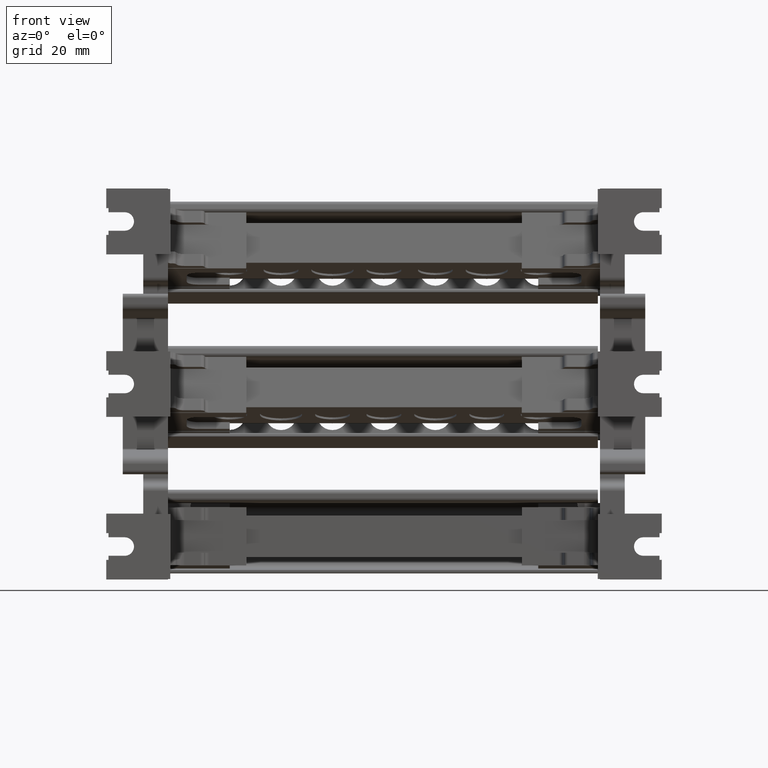
[diagram: clean part render]
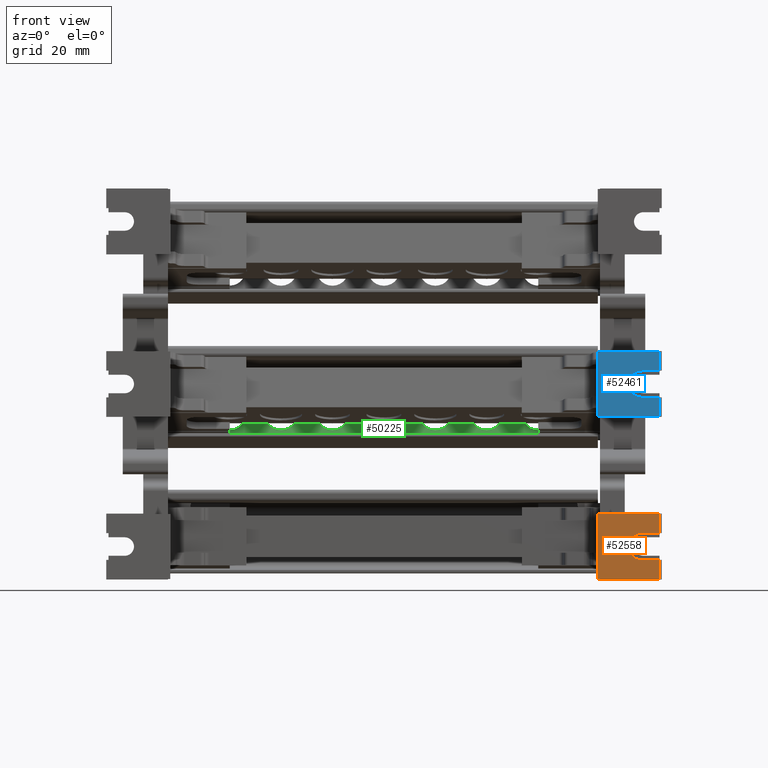
[diagram: same view with three faces highlighted in distinct colors, each labeled with its STEP entity id]
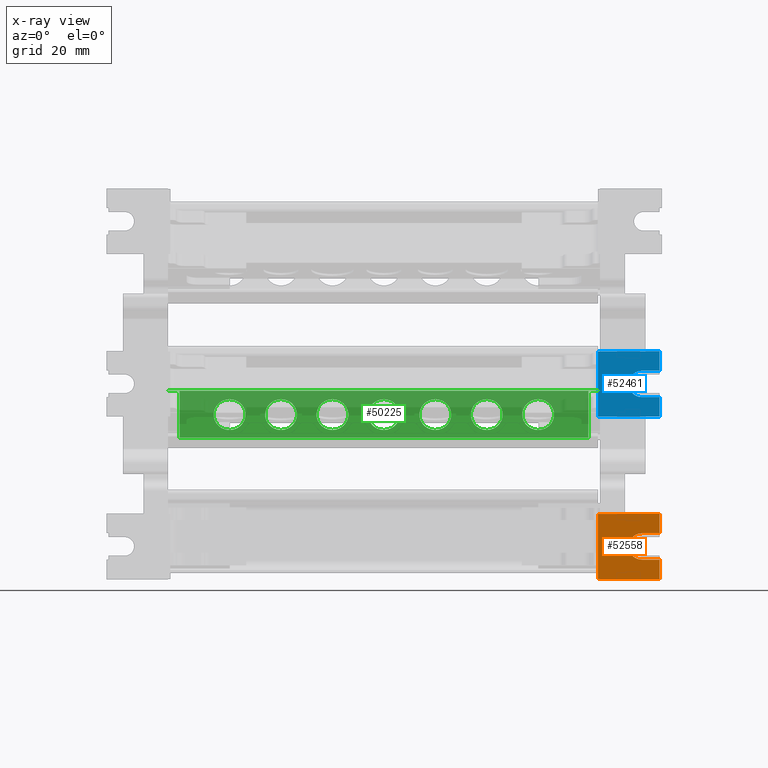
[diagram: x-ray of the same camera — body ghosted, the three highlighted faces saturated]
A machine part, front view with three faces highlighted in distinct colors.
The next image is the same camera in x-ray (body ghosted, the three faces saturated) — at least one of them is partly hidden behind the body in this view.
Their STEP definitions:

[orange] entity #52558 — the highlighted planar face has unit normal (0, 1, 0).
#4030 = VECTOR ( 'NONE', #16998, 1000.000000000000000 ) ;
#4119 = VECTOR ( 'NONE', #17245, 1000.000000000000000 ) ;
#4133 = VECTOR ( 'NONE', #17243, 1000.000000000000000 ) ;
#4245 = VECTOR ( 'NONE', #17391, 1000.000000000000000 ) ;
#4294 = VECTOR ( 'NONE', #17324, 1000.000000000000000 ) ;
#15942 = LINE ( 'NONE', #15975, #82627 ) ;
#15975 = CARTESIAN_POINT ( 'NONE',  ( 43.64805696747413300, 224.4797002765540100, -39.52685117816790200 ) ) ;
#16084 = DIRECTION ( 'NONE',  ( 1.000000000000000000, 0.0000000000000000000, 0.0000000000000000000 ) ) ;
#16132 = CARTESIAN_POINT ( 'NONE',  ( 54.34805696747413600, 224.4797002765540100, -36.32685117816790700 ) ) ;
#16137 = DIRECTION ( 'NONE',  ( 0.0000000000000000000, -1.000000000000000000, 0.0000000000000000000 ) ) ;
#16139 = DIRECTION ( 'NONE',  ( 0.0000000000000000000, 0.0000000000000000000, -1.000000000000000000 ) ) ;
#16670 = LINE ( 'NONE', #16724, #81398 ) ;
#16724 = CARTESIAN_POINT ( 'NONE',  ( 43.64805696747413300, 224.4797002765540100, -33.12685117816789700 ) ) ;
#16737 = DIRECTION ( 'NONE',  ( -1.000000000000000000, -0.0000000000000000000, -0.0000000000000000000 ) ) ;
#16943 = CARTESIAN_POINT ( 'NONE',  ( 58.64805696747413300, 224.4797002765540100, -28.42685117816790100 ) ) ;
#16996 = LINE ( 'NONE', #16943, #4030 ) ;
#16998 = DIRECTION ( 'NONE',  ( -0.0000000000000000000, -0.0000000000000000000, -1.000000000000000000 ) ) ;
#17212 = LINE ( 'NONE', #17266, #4133 ) ;
#17243 = DIRECTION ( 'NONE',  ( 0.0000000000000000000, 0.0000000000000000000, -1.000000000000000000 ) ) ;
#17245 = DIRECTION ( 'NONE',  ( -1.000000000000000000, 0.0000000000000000000, 0.0000000000000000000 ) ) ;
#17247 = CARTESIAN_POINT ( 'NONE',  ( 43.64805696747413300, 224.4797002765540100, -28.42685117816790100 ) ) ;
#17257 = LINE ( 'NONE', #17247, #4119 ) ;
#17266 = CARTESIAN_POINT ( 'NONE',  ( 43.64805696747413300, 224.4797002765540100, -28.42685117816790100 ) ) ;
#17324 = DIRECTION ( 'NONE',  ( -1.000000000000000000, 0.0000000000000000000, 0.0000000000000000000 ) ) ;
#17343 = LINE ( 'NONE', #17363, #4294 ) ;
#17363 = CARTESIAN_POINT ( 'NONE',  ( 43.64805696747413300, 224.4797002765540100, -44.22685117816789800 ) ) ;
#17367 = LINE ( 'NONE', #17405, #4245 ) ;
#17391 = DIRECTION ( 'NONE',  ( -0.0000000000000000000, -0.0000000000000000000, -1.000000000000000000 ) ) ;
#17405 = CARTESIAN_POINT ( 'NONE',  ( 58.64805696747413300, 224.4797002765540100, -28.42685117816790100 ) ) ;
#22850 = DIRECTION ( 'NONE',  ( 0.0000000000000000000, 0.0000000000000000000, 1.000000000000000000 ) ) ;
#22864 = PLANE ( 'NONE',  #25761 ) ;
#22875 = CARTESIAN_POINT ( 'NONE',  ( 43.64805696747413300, 224.4797002765540100, -28.42685117816790100 ) ) ;
#22893 = DIRECTION ( 'NONE',  ( 0.0000000000000000000, 1.000000000000000000, 0.0000000000000000000 ) ) ;
#22900 = FACE_OUTER_BOUND ( 'NONE', #37283, .T. ) ;
#24769 = ORIENTED_EDGE ( 'NONE', *, *, #55118, .F. ) ;
#24770 = ORIENTED_EDGE ( 'NONE', *, *, #55676, .F. ) ;
#24771 = ORIENTED_EDGE ( 'NONE', *, *, #55585, .T. ) ;
#24778 = ORIENTED_EDGE ( 'NONE', *, *, #55116, .F. ) ;
#24781 = ORIENTED_EDGE ( 'NONE', *, *, #55583, .T. ) ;
#24782 = ORIENTED_EDGE ( 'NONE', *, *, #55450, .F. ) ;
#24793 = ORIENTED_EDGE ( 'NONE', *, *, #55361, .F. ) ;
#24801 = ORIENTED_EDGE ( 'NONE', *, *, #55688, .F. ) ;
#25761 = AXIS2_PLACEMENT_3D ( 'NONE', #22875, #22893, #22850 ) ;
#32282 = VERTEX_POINT ( 'NONE', #62806 ) ;
#32298 = VERTEX_POINT ( 'NONE', #62730 ) ;
#32307 = VERTEX_POINT ( 'NONE', #62936 ) ;
#32336 = VERTEX_POINT ( 'NONE', #62928 ) ;
#32343 = VERTEX_POINT ( 'NONE', #62862 ) ;
#32356 = VERTEX_POINT ( 'NONE', #62884 ) ;
#32368 = VERTEX_POINT ( 'NONE', #62999 ) ;
#32383 = VERTEX_POINT ( 'NONE', #62995 ) ;
#37283 = EDGE_LOOP ( 'NONE', ( #24769, #24778, #24793, #24801, #24781, #24771, #24770, #24782 ) ) ;
#52558 = ADVANCED_FACE ( 'NONE', ( #22900 ), #22864, .F. ) ;
#55116 = EDGE_CURVE ( 'NONE', #32336, #32298, #82572, .T. ) ;
#55118 = EDGE_CURVE ( 'NONE', #32298, #32282, #15942, .T. ) ;
#55361 = EDGE_CURVE ( 'NONE', #32307, #32336, #16670, .T. ) ;
#55450 = EDGE_CURVE ( 'NONE', #32282, #32383, #16996, .T. ) ;
#55583 = EDGE_CURVE ( 'NONE', #32343, #32356, #17257, .T. ) ;
#55585 = EDGE_CURVE ( 'NONE', #32356, #32368, #17212, .T. ) ;
#55676 = EDGE_CURVE ( 'NONE', #32383, #32368, #17343, .T. ) ;
#55688 = EDGE_CURVE ( 'NONE', #32343, #32307, #17367, .T. ) ;
#62730 = CARTESIAN_POINT ( 'NONE',  ( 54.34805696747413600, 224.4797002765540100, -39.52685117816790200 ) ) ;
#62806 = CARTESIAN_POINT ( 'NONE',  ( 58.64805696747413300, 224.4797002765540100, -39.52685117816790200 ) ) ;
#62862 = CARTESIAN_POINT ( 'NONE',  ( 58.64805696747413300, 224.4797002765540100, -28.42685117816790100 ) ) ;
#62884 = CARTESIAN_POINT ( 'NONE',  ( 43.64805696747413300, 224.4797002765540100, -28.42685117816790100 ) ) ;
#62928 = CARTESIAN_POINT ( 'NONE',  ( 54.34805696747413600, 224.4797002765540100, -33.12685117816789700 ) ) ;
#62936 = CARTESIAN_POINT ( 'NONE',  ( 58.64805696747413300, 224.4797002765540100, -33.12685117816789700 ) ) ;
#62995 = CARTESIAN_POINT ( 'NONE',  ( 58.64805696747413300, 224.4797002765540100, -44.22685117816789800 ) ) ;
#62999 = CARTESIAN_POINT ( 'NONE',  ( 43.64805696747413300, 224.4797002765540100, -44.22685117816789800 ) ) ;
#81398 = VECTOR ( 'NONE', #16737, 1000.000000000000000 ) ;
#82572 = CIRCLE ( 'NONE', #82622, 3.200000000000001500 ) ;
#82622 = AXIS2_PLACEMENT_3D ( 'NONE', #16132, #16137, #16139 ) ;
#82627 = VECTOR ( 'NONE', #16084, 1000.000000000000000 ) ;

[blue] entity #52461 — the highlighted planar face has unit normal (0, 1, 0).
#15992 = DIRECTION ( 'NONE',  ( -0.0000000000000000000, -0.0000000000000000000, -1.000000000000000000 ) ) ;
#16026 = LINE ( 'NONE', #16028, #82576 ) ;
#16028 = CARTESIAN_POINT ( 'NONE',  ( 58.64805696747379200, 225.1545390998704200, 11.07073922711817500 ) ) ;
#17666 = LINE ( 'NONE', #17668, #82600 ) ;
#17668 = CARTESIAN_POINT ( 'NONE',  ( 58.64805696747379200, 225.1545390998704200, 11.07073922711817500 ) ) ;
#17703 = DIRECTION ( 'NONE',  ( -0.0000000000000000000, -0.0000000000000000000, -1.000000000000000000 ) ) ;
#18749 = CARTESIAN_POINT ( 'NONE',  ( 54.34805696747379500, 225.1545390998704200, 3.170739227118170200 ) ) ;
#18751 = DIRECTION ( 'NONE',  ( 0.0000000000000000000, 0.0000000000000000000, -1.000000000000000000 ) ) ;
#18792 = DIRECTION ( 'NONE',  ( 0.0000000000000000000, -1.000000000000000000, 0.0000000000000000000 ) ) ;
#18984 = LINE ( 'NONE', #19032, #82413 ) ;
#19032 = CARTESIAN_POINT ( 'NONE',  ( 43.64805696747379200, 225.1545390998704200, -0.02926077288182421500 ) ) ;
#19034 = DIRECTION ( 'NONE',  ( 1.000000000000000000, 0.0000000000000000000, 0.0000000000000000000 ) ) ;
#19127 = LINE ( 'NONE', #19204, #82401 ) ;
#19129 = DIRECTION ( 'NONE',  ( -1.000000000000000000, -0.0000000000000000000, -0.0000000000000000000 ) ) ;
#19204 = CARTESIAN_POINT ( 'NONE',  ( 43.64805696747379200, 225.1545390998704200, 6.370739227118171800 ) ) ;
#19595 = LINE ( 'NONE', #19664, #82461 ) ;
#19599 = DIRECTION ( 'NONE',  ( 0.0000000000000000000, 0.0000000000000000000, -1.000000000000000000 ) ) ;
#19664 = CARTESIAN_POINT ( 'NONE',  ( 43.64805696747379200, 225.1545390998704200, 11.07073922711817500 ) ) ;
#19711 = LINE ( 'NONE', #19826, #82516 ) ;
#19826 = CARTESIAN_POINT ( 'NONE',  ( 43.64805696747379200, 225.1545390998704200, 11.07073922711817500 ) ) ;
#19846 = CARTESIAN_POINT ( 'NONE',  ( 43.64805696747379200, 225.1545390998704200, -4.729260772881827000 ) ) ;
#19849 = DIRECTION ( 'NONE',  ( -1.000000000000000000, 0.0000000000000000000, 0.0000000000000000000 ) ) ;
#19884 = DIRECTION ( 'NONE',  ( -1.000000000000000000, 0.0000000000000000000, 0.0000000000000000000 ) ) ;
#19902 = LINE ( 'NONE', #19846, #82508 ) ;
#22060 = DIRECTION ( 'NONE',  ( 0.0000000000000000000, 1.000000000000000000, 0.0000000000000000000 ) ) ;
#22096 = DIRECTION ( 'NONE',  ( 0.0000000000000000000, 0.0000000000000000000, 1.000000000000000000 ) ) ;
#22109 = PLANE ( 'NONE',  #25723 ) ;
#22122 = FACE_OUTER_BOUND ( 'NONE', #37158, .T. ) ;
#22139 = CARTESIAN_POINT ( 'NONE',  ( 43.64805696747379200, 225.1545390998704200, 11.07073922711817500 ) ) ;
#24449 = ORIENTED_EDGE ( 'NONE', *, *, #54700, .F. ) ;
#24459 = ORIENTED_EDGE ( 'NONE', *, *, #54901, .T. ) ;
#24473 = ORIENTED_EDGE ( 'NONE', *, *, #55076, .F. ) ;
#24475 = ORIENTED_EDGE ( 'NONE', *, *, #54943, .T. ) ;
#24477 = ORIENTED_EDGE ( 'NONE', *, *, #54950, .F. ) ;
#24495 = ORIENTED_EDGE ( 'NONE', *, *, #54779, .F. ) ;
#24505 = ORIENTED_EDGE ( 'NONE', *, *, #55093, .F. ) ;
#24516 = ORIENTED_EDGE ( 'NONE', *, *, #54762, .F. ) ;
#25723 = AXIS2_PLACEMENT_3D ( 'NONE', #22139, #22060, #22096 ) ;
#32151 = VERTEX_POINT ( 'NONE', #62519 ) ;
#32207 = VERTEX_POINT ( 'NONE', #62693 ) ;
#32215 = VERTEX_POINT ( 'NONE', #62671 ) ;
#32231 = VERTEX_POINT ( 'NONE', #62705 ) ;
#32255 = VERTEX_POINT ( 'NONE', #62808 ) ;
#32259 = VERTEX_POINT ( 'NONE', #62763 ) ;
#32309 = VERTEX_POINT ( 'NONE', #62897 ) ;
#32321 = VERTEX_POINT ( 'NONE', #62948 ) ;
#37158 = EDGE_LOOP ( 'NONE', ( #24516, #24449, #24495, #24505, #24475, #24459, #24477, #24473 ) ) ;
#52461 = ADVANCED_FACE ( 'NONE', ( #22122 ), #22109, .F. ) ;
#54700 = EDGE_CURVE ( 'NONE', #32259, #32151, #82365, .T. ) ;
#54762 = EDGE_CURVE ( 'NONE', #32151, #32207, #18984, .T. ) ;
#54779 = EDGE_CURVE ( 'NONE', #32255, #32259, #19127, .T. ) ;
#54901 = EDGE_CURVE ( 'NONE', #32321, #32309, #19595, .T. ) ;
#54943 = EDGE_CURVE ( 'NONE', #32231, #32321, #19711, .T. ) ;
#54950 = EDGE_CURVE ( 'NONE', #32215, #32309, #19902, .T. ) ;
#55076 = EDGE_CURVE ( 'NONE', #32207, #32215, #17666, .T. ) ;
#55093 = EDGE_CURVE ( 'NONE', #32231, #32255, #16026, .T. ) ;
#62519 = CARTESIAN_POINT ( 'NONE',  ( 54.34805696747379500, 225.1545390998704200, -0.02926077288182421500 ) ) ;
#62671 = CARTESIAN_POINT ( 'NONE',  ( 58.64805696747379200, 225.1545390998704200, -4.729260772881827000 ) ) ;
#62693 = CARTESIAN_POINT ( 'NONE',  ( 58.64805696747379200, 225.1545390998704200, -0.02926077288182421500 ) ) ;
#62705 = CARTESIAN_POINT ( 'NONE',  ( 58.64805696747379200, 225.1545390998704200, 11.07073922711817500 ) ) ;
#62763 = CARTESIAN_POINT ( 'NONE',  ( 54.34805696747379500, 225.1545390998704200, 6.370739227118171800 ) ) ;
#62808 = CARTESIAN_POINT ( 'NONE',  ( 58.64805696747379200, 225.1545390998704200, 6.370739227118171800 ) ) ;
#62897 = CARTESIAN_POINT ( 'NONE',  ( 43.64805696747379200, 225.1545390998704200, -4.729260772881827000 ) ) ;
#62948 = CARTESIAN_POINT ( 'NONE',  ( 43.64805696747379200, 225.1545390998704200, 11.07073922711817500 ) ) ;
#82365 = CIRCLE ( 'NONE', #82372, 3.200000000000000200 ) ;
#82372 = AXIS2_PLACEMENT_3D ( 'NONE', #18749, #18792, #18751 ) ;
#82401 = VECTOR ( 'NONE', #19129, 1000.000000000000000 ) ;
#82413 = VECTOR ( 'NONE', #19034, 1000.000000000000000 ) ;
#82461 = VECTOR ( 'NONE', #19599, 1000.000000000000000 ) ;
#82508 = VECTOR ( 'NONE', #19884, 1000.000000000000000 ) ;
#82516 = VECTOR ( 'NONE', #19849, 1000.000000000000000 ) ;
#82576 = VECTOR ( 'NONE', #15992, 1000.000000000000000 ) ;
#82600 = VECTOR ( 'NONE', #17703, 1000.000000000000000 ) ;

[green] entity #50225 — the highlighted planar face has unit normal (0, 0.9659, -0.2588).
#963 = VERTEX_POINT ( 'NONE', #78621 ) ;
#1030 = VERTEX_POINT ( 'NONE', #78652 ) ;
#1067 = VERTEX_POINT ( 'NONE', #78619 ) ;
#2010 = CARTESIAN_POINT ( 'NONE',  ( 43.67005696747485600, 274.5692525914249100, -26.77921404074675500 ) ) ;
#2052 = LINE ( 'NONE', #2010, #94110 ) ;
#2204 = DIRECTION ( 'NONE',  ( -0.0000000000000000000, -0.2588190451025304500, -0.9659258262890656500 ) ) ;
#2556 = CARTESIAN_POINT ( 'NONE',  ( 43.67005696747485600, 282.1479161649490900, 1.504743469115843700 ) ) ;
#2573 = LINE ( 'NONE', #2556, #94121 ) ;
#2824 = DIRECTION ( 'NONE',  ( -1.000000000000000000, 8.654813373745597700E-015, -5.726533854765768700E-015 ) ) ;
#5416 = CARTESIAN_POINT ( 'NONE',  ( 29.17005696747487100, 280.5958821151571100, -4.287526459784884600 ) ) ;
#5421 = DIRECTION ( 'NONE',  ( -9.842043783450651300E-015, -0.9659258262890657600, 0.2588190451025304500 ) ) ;
#5464 = DIRECTION ( 'NONE',  ( -9.842043783450651300E-015, -0.9659258262890657600, 0.2588190451025304500 ) ) ;
#5467 = DIRECTION ( 'NONE',  ( 0.0000000000000000000, 0.2588190451025361200, 0.9659258262890642000 ) ) ;
#5496 = LINE ( 'NONE', #5535, #50174 ) ;
#5501 = CARTESIAN_POINT ( 'NONE',  ( 4.170056967474878600, 280.5958821151572800, -4.287526459785135000 ) ) ;
#5535 = CARTESIAN_POINT ( 'NONE',  ( 41.36951845470735400, 274.5692525914249100, -26.77921404074676200 ) ) ;
#5551 = DIRECTION ( 'NONE',  ( 0.0000000000000000000, 0.2588190451025258500, 0.9659258262890669800 ) ) ;
#5610 = DIRECTION ( 'NONE',  ( -0.0000000000000000000, -0.2588190451025304500, -0.9659258262890656500 ) ) ;
#5715 = CARTESIAN_POINT ( 'NONE',  ( -8.329943032525118700, 280.5958821151573900, -4.287526459785206100 ) ) ;
#5766 = DIRECTION ( 'NONE',  ( -9.842043783450651300E-015, -0.9659258262890657600, 0.2588190451025304500 ) ) ;
#5788 = DIRECTION ( 'NONE',  ( 0.0000000000000000000, 0.2588190451025345100, 0.9659258262890646500 ) ) ;
#5956 = CARTESIAN_POINT ( 'NONE',  ( 16.67005696747487400, 280.5958821151571700, -4.287526459785039100 ) ) ;
#5993 = DIRECTION ( 'NONE',  ( 0.0000000000000000000, 0.2588190451025339000, 0.9659258262890647600 ) ) ;
#5997 = DIRECTION ( 'NONE',  ( -9.842043783450651300E-015, -0.9659258262890657600, 0.2588190451025304500 ) ) ;
#6074 = CARTESIAN_POINT ( 'NONE',  ( -33.32994303252513600, 280.5958821151575600, -4.287526459785504500 ) ) ;
#6079 = DIRECTION ( 'NONE',  ( -9.842043783450651300E-015, -0.9659258262890657600, 0.2588190451025304500 ) ) ;
#6085 = DIRECTION ( 'NONE',  ( 0.0000000000000000000, 0.2588190451025358900, 0.9659258262890642000 ) ) ;
#6177 = CARTESIAN_POINT ( 'NONE',  ( 43.67005696747498400, 282.1142224329141800, 1.378996749265084300 ) ) ;
#6185 = DIRECTION ( 'NONE',  ( -1.000000000000000000, 9.506684273902734000E-015, -2.547308373889993700E-015 ) ) ;
#6192 = CARTESIAN_POINT ( 'NONE',  ( 43.67005696747498400, 282.1142224329135500, 1.378996749262770400 ) ) ;
#6212 = DIRECTION ( 'NONE',  ( 0.0000000000000000000, 0.2588190451025244600, 0.9659258262890673100 ) ) ;
#6224 = LINE ( 'NONE', #6177, #49153 ) ;
#6237 = DIRECTION ( 'NONE',  ( -1.000000000000000000, 9.506684273902734000E-015, -2.547308373889993700E-015 ) ) ;
#6246 = CARTESIAN_POINT ( 'NONE',  ( -45.82994303252516500, 280.5958821151576800, -4.287526459785626200 ) ) ;
#6252 = DIRECTION ( 'NONE',  ( -9.842043783450651300E-015, -0.9659258262890657600, 0.2588190451025304500 ) ) ;
#6263 = LINE ( 'NONE', #6192, #50259 ) ;
#6471 = DIRECTION ( 'NONE',  ( 0.0000000000000000000, 0.2588190451025308400, 0.9659258262890656500 ) ) ;
#6493 = DIRECTION ( 'NONE',  ( -9.842043783450651300E-015, -0.9659258262890657600, 0.2588190451025304500 ) ) ;
#6515 = CARTESIAN_POINT ( 'NONE',  ( -20.82994303252513300, 280.5958821151575100, -4.287526459785385500 ) ) ;
#9678 = EDGE_CURVE ( 'NONE', #31511, #31661, #23989, .T. ) ;
#9771 = EDGE_CURVE ( 'NONE', #31547, #31549, #23987, .T. ) ;
#9789 = EDGE_CURVE ( 'NONE', #31540, #31634, #24071, .T. ) ;
#9796 = EDGE_CURVE ( 'NONE', #31605, #31492, #24058, .T. ) ;
#9833 = EDGE_CURVE ( 'NONE', #31365, #31474, #24084, .T. ) ;
#9924 = EDGE_CURVE ( 'NONE', #31570, #31359, #24171, .T. ) ;
#9945 = EDGE_CURVE ( 'NONE', #31465, #31553, #24140, .T. ) ;
#15572 = AXIS2_PLACEMENT_3D ( 'NONE', #61138, #61146, #61101 ) ;
#23987 = CIRCLE ( 'NONE', #24029, 3.869820224935684600 ) ;
#23989 = CIRCLE ( 'NONE', #24038, 3.869820224921967100 ) ;
#24029 = AXIS2_PLACEMENT_3D ( 'NONE', #75298, #75288, #75300 ) ;
#24038 = AXIS2_PLACEMENT_3D ( 'NONE', #75195, #75218, #75216 ) ;
#24058 = CIRCLE ( 'NONE', #24095, 3.869820224935405700 ) ;
#24071 = CIRCLE ( 'NONE', #24079, 3.869820224922087000 ) ;
#24079 = AXIS2_PLACEMENT_3D ( 'NONE', #75336, #75315, #75316 ) ;
#24084 = CIRCLE ( 'NONE', #24107, 3.869820224907781100 ) ;
#24095 = AXIS2_PLACEMENT_3D ( 'NONE', #75339, #75321, #75343 ) ;
#24107 = AXIS2_PLACEMENT_3D ( 'NONE', #75391, #75384, #75354 ) ;
#24124 = AXIS2_PLACEMENT_3D ( 'NONE', #75470, #75473, #75461 ) ;
#24140 = CIRCLE ( 'NONE', #24163, 3.869820224935524700 ) ;
#24163 = AXIS2_PLACEMENT_3D ( 'NONE', #75510, #75506, #75525 ) ;
#24171 = CIRCLE ( 'NONE', #24124, 3.869820224935875100 ) ;
#31359 = VERTEX_POINT ( 'NONE', #64184 ) ;
#31365 = VERTEX_POINT ( 'NONE', #62066 ) ;
#31465 = VERTEX_POINT ( 'NONE', #61560 ) ;
#31474 = VERTEX_POINT ( 'NONE', #61581 ) ;
#31492 = VERTEX_POINT ( 'NONE', #61610 ) ;
#31511 = VERTEX_POINT ( 'NONE', #61601 ) ;
#31540 = VERTEX_POINT ( 'NONE', #61703 ) ;
#31547 = VERTEX_POINT ( 'NONE', #61671 ) ;
#31549 = VERTEX_POINT ( 'NONE', #61687 ) ;
#31553 = VERTEX_POINT ( 'NONE', #61680 ) ;
#31570 = VERTEX_POINT ( 'NONE', #61668 ) ;
#31605 = VERTEX_POINT ( 'NONE', #61729 ) ;
#31634 = VERTEX_POINT ( 'NONE', #61733 ) ;
#31661 = VERTEX_POINT ( 'NONE', #61772 ) ;
#37512 = VERTEX_POINT ( 'NONE', #63232 ) ;
#37552 = VERTEX_POINT ( 'NONE', #63212 ) ;
#37556 = VERTEX_POINT ( 'NONE', #63143 ) ;
#37561 = VERTEX_POINT ( 'NONE', #63267 ) ;
#46818 = VERTEX_POINT ( 'NONE', #63535 ) ;
#49145 = CIRCLE ( 'NONE', #49146, 3.869820224935524700 ) ;
#49146 = AXIS2_PLACEMENT_3D ( 'NONE', #6515, #6493, #6471 ) ;
#49153 = VECTOR ( 'NONE', #6185, 1000.000000000000000 ) ;
#50118 = AXIS2_PLACEMENT_3D ( 'NONE', #5416, #5421, #5551 ) ;
#50120 = CIRCLE ( 'NONE', #50160, 3.869820224935684600 ) ;
#50131 = CIRCLE ( 'NONE', #50201, 3.869820224935875100 ) ;
#50160 = AXIS2_PLACEMENT_3D ( 'NONE', #5715, #5766, #5788 ) ;
#50174 = VECTOR ( 'NONE', #5610, 1000.000000000000100 ) ;
#50201 = AXIS2_PLACEMENT_3D ( 'NONE', #5501, #5464, #5467 ) ;
#50207 = CIRCLE ( 'NONE', #50118, 3.869820224922087000 ) ;
#50225 = ADVANCED_FACE ( 'NONE', ( #61102, #61142, #61133, #61126, #61098, #61145, #61113, #61128 ), #61100, .F. ) ;
#50232 = AXIS2_PLACEMENT_3D ( 'NONE', #6074, #6079, #6085 ) ;
#50240 = CIRCLE ( 'NONE', #50291, 3.869820224921967100 ) ;
#50245 = CIRCLE ( 'NONE', #50232, 3.869820224907781100 ) ;
#50257 = CIRCLE ( 'NONE', #50278, 3.869820224935405700 ) ;
#50259 = VECTOR ( 'NONE', #6237, 1000.000000000000000 ) ;
#50278 = AXIS2_PLACEMENT_3D ( 'NONE', #6246, #6252, #6212 ) ;
#50291 = AXIS2_PLACEMENT_3D ( 'NONE', #5956, #5997, #5993 ) ;
#61098 = FACE_BOUND ( 'NONE', #95036, .T. ) ;
#61100 = PLANE ( 'NONE',  #15572 ) ;
#61101 = DIRECTION ( 'NONE',  ( 0.0000000000000000000, 0.2588190451025304500, 0.9659258262890656500 ) ) ;
#61102 = FACE_OUTER_BOUND ( 'NONE', #95130, .T. ) ;
#61113 = FACE_BOUND ( 'NONE', #95120, .T. ) ;
#61126 = FACE_BOUND ( 'NONE', #95110, .T. ) ;
#61128 = FACE_BOUND ( 'NONE', #94945, .T. ) ;
#61133 = FACE_BOUND ( 'NONE', #95112, .T. ) ;
#61138 = CARTESIAN_POINT ( 'NONE',  ( 43.67005696747498400, 274.5692525914249100, -26.77921404074675500 ) ) ;
#61142 = FACE_BOUND ( 'NONE', #95079, .T. ) ;
#61145 = FACE_BOUND ( 'NONE', #94932, .T. ) ;
#61146 = DIRECTION ( 'NONE',  ( 9.842043783450652900E-015, 0.9659258262890657600, -0.2588190451025305100 ) ) ;
#61560 = CARTESIAN_POINT ( 'NONE',  ( -20.82994303252513300, 281.5974652904939100, -0.5495671614240568200 ) ) ;
#61581 = CARTESIAN_POINT ( 'NONE',  ( -33.32994303252513600, 279.5942989398283800, -8.025485758120027000 ) ) ;
#61601 = CARTESIAN_POINT ( 'NONE',  ( 16.67005696747487400, 281.5974652904899900, -0.5495671614367957400 ) ) ;
#61610 = CARTESIAN_POINT ( 'NONE',  ( -45.82994303252516500, 279.5942989398213300, -8.025485758146849900 ) ) ;
#61668 = CARTESIAN_POINT ( 'NONE',  ( 4.170056967474880400, 281.5974652904937400, -0.5495671614234696200 ) ) ;
#61671 = CARTESIAN_POINT ( 'NONE',  ( -8.329943032525118700, 281.5974652904938000, -0.5495671614237233000 ) ) ;
#61680 = CARTESIAN_POINT ( 'NONE',  ( -20.82994303252513300, 279.5942989398211000, -8.025485758146720300 ) ) ;
#61687 = CARTESIAN_POINT ( 'NONE',  ( -8.329943032525118700, 279.5942989398210400, -8.025485758146677600 ) ) ;
#61703 = CARTESIAN_POINT ( 'NONE',  ( 29.17005696747487100, 281.5974652904899900, -0.5495671614365195100 ) ) ;
#61729 = CARTESIAN_POINT ( 'NONE',  ( -45.82994303252516500, 281.5974652904940300, -0.5495671614243919900 ) ) ;
#61733 = CARTESIAN_POINT ( 'NONE',  ( 29.17005696747487100, 279.5942989398242300, -8.025485758133248400 ) ) ;
#61772 = CARTESIAN_POINT ( 'NONE',  ( 16.67005696747487400, 279.5942989398243400, -8.025485758133262600 ) ) ;
#62066 = CARTESIAN_POINT ( 'NONE',  ( -33.32994303252513600, 281.5974652904867500, -0.5495671614509670700 ) ) ;
#63143 = CARTESIAN_POINT ( 'NONE',  ( -57.97340451975888700, 282.1142224329143500, 1.378996749263058800 ) ) ;
#63212 = CARTESIAN_POINT ( 'NONE',  ( -60.79994303252510000, 282.1142224329143500, 1.378996749263699900 ) ) ;
#63232 = CARTESIAN_POINT ( 'NONE',  ( 41.36951845470731100, 282.1142224329141800, 1.378996749265053400 ) ) ;
#63267 = CARTESIAN_POINT ( 'NONE',  ( 41.36951845470734000, 279.0938522970424200, -9.893178055471889100 ) ) ;
#63535 = CARTESIAN_POINT ( 'NONE',  ( 43.67005696747485600, 282.1142224329140600, 1.378996749265063700 ) ) ;
#64184 = CARTESIAN_POINT ( 'NONE',  ( 4.170056967474879500, 279.5942989398208700, -8.025485758146789500 ) ) ;
#70839 = EDGE_CURVE ( 'NONE', #31634, #31540, #50207, .T. ) ;
#70853 = EDGE_CURVE ( 'NONE', #31359, #31570, #50131, .T. ) ;
#70862 = EDGE_CURVE ( 'NONE', #37512, #37561, #5496, .T. ) ;
#70900 = EDGE_CURVE ( 'NONE', #31549, #31547, #50120, .T. ) ;
#70950 = EDGE_CURVE ( 'NONE', #31661, #31511, #50240, .T. ) ;
#70967 = EDGE_CURVE ( 'NONE', #31474, #31365, #50245, .T. ) ;
#70995 = EDGE_CURVE ( 'NONE', #37556, #37552, #6263, .T. ) ;
#70999 = EDGE_CURVE ( 'NONE', #31492, #31605, #50257, .T. ) ;
#71020 = EDGE_CURVE ( 'NONE', #46818, #37512, #6224, .T. ) ;
#71063 = EDGE_CURVE ( 'NONE', #31553, #31465, #49145, .T. ) ;
#72064 = EDGE_CURVE ( 'NONE', #1030, #46818, #2052, .T. ) ;
#72171 = EDGE_CURVE ( 'NONE', #1030, #1067, #2573, .T. ) ;
#72258 = EDGE_CURVE ( 'NONE', #37556, #963, #91789, .T. ) ;
#72274 = EDGE_CURVE ( 'NONE', #963, #37561, #91813, .T. ) ;
#72389 = EDGE_CURVE ( 'NONE', #37552, #1067, #92012, .T. ) ;
#75195 = CARTESIAN_POINT ( 'NONE',  ( 16.67005696747487400, 280.5958821151571700, -4.287526459785039100 ) ) ;
#75216 = DIRECTION ( 'NONE',  ( 0.0000000000000000000, 0.2588190451025339000, 0.9659258262890647600 ) ) ;
#75218 = DIRECTION ( 'NONE',  ( -9.842043783450651300E-015, -0.9659258262890657600, 0.2588190451025304500 ) ) ;
#75288 = DIRECTION ( 'NONE',  ( -9.842043783450651300E-015, -0.9659258262890657600, 0.2588190451025304500 ) ) ;
#75298 = CARTESIAN_POINT ( 'NONE',  ( -8.329943032525118700, 280.5958821151573900, -4.287526459785206100 ) ) ;
#75300 = DIRECTION ( 'NONE',  ( 0.0000000000000000000, 0.2588190451025345100, 0.9659258262890646500 ) ) ;
#75315 = DIRECTION ( 'NONE',  ( -9.842043783450651300E-015, -0.9659258262890657600, 0.2588190451025304500 ) ) ;
#75316 = DIRECTION ( 'NONE',  ( 0.0000000000000000000, 0.2588190451025258500, 0.9659258262890669800 ) ) ;
#75321 = DIRECTION ( 'NONE',  ( -9.842043783450651300E-015, -0.9659258262890657600, 0.2588190451025304500 ) ) ;
#75336 = CARTESIAN_POINT ( 'NONE',  ( 29.17005696747487100, 280.5958821151571100, -4.287526459784884600 ) ) ;
#75339 = CARTESIAN_POINT ( 'NONE',  ( -45.82994303252516500, 280.5958821151576800, -4.287526459785626200 ) ) ;
#75343 = DIRECTION ( 'NONE',  ( 0.0000000000000000000, 0.2588190451025244600, 0.9659258262890673100 ) ) ;
#75354 = DIRECTION ( 'NONE',  ( 0.0000000000000000000, 0.2588190451025358900, 0.9659258262890642000 ) ) ;
#75384 = DIRECTION ( 'NONE',  ( -9.842043783450651300E-015, -0.9659258262890657600, 0.2588190451025304500 ) ) ;
#75391 = CARTESIAN_POINT ( 'NONE',  ( -33.32994303252513600, 280.5958821151575600, -4.287526459785504500 ) ) ;
#75461 = DIRECTION ( 'NONE',  ( 0.0000000000000000000, 0.2588190451025361200, 0.9659258262890642000 ) ) ;
#75470 = CARTESIAN_POINT ( 'NONE',  ( 4.170056967474878600, 280.5958821151572800, -4.287526459785135000 ) ) ;
#75473 = DIRECTION ( 'NONE',  ( -9.842043783450651300E-015, -0.9659258262890657600, 0.2588190451025304500 ) ) ;
#75506 = DIRECTION ( 'NONE',  ( -9.842043783450651300E-015, -0.9659258262890657600, 0.2588190451025304500 ) ) ;
#75510 = CARTESIAN_POINT ( 'NONE',  ( -20.82994303252513300, 280.5958821151575100, -4.287526459785385500 ) ) ;
#75525 = DIRECTION ( 'NONE',  ( 0.0000000000000000000, 0.2588190451025308400, 0.9659258262890656500 ) ) ;
#78619 = CARTESIAN_POINT ( 'NONE',  ( -60.79994303252510700, 282.1479161649500000, 1.504743469115248100 ) ) ;
#78621 = CARTESIAN_POINT ( 'NONE',  ( -57.97340451975903600, 279.0938522970433300, -9.893178055472445100 ) ) ;
#78652 = CARTESIAN_POINT ( 'NONE',  ( 43.67005696747484900, 282.1479161649490400, 1.504743469115846800 ) ) ;
#90835 = ORIENTED_EDGE ( 'NONE', *, *, #72064, .F. ) ;
#90841 = ORIENTED_EDGE ( 'NONE', *, *, #9789, .F. ) ;
#90853 = ORIENTED_EDGE ( 'NONE', *, *, #9924, .F. ) ;
#90855 = ORIENTED_EDGE ( 'NONE', *, *, #70900, .F. ) ;
#90858 = ORIENTED_EDGE ( 'NONE', *, *, #9833, .F. ) ;
#90870 = ORIENTED_EDGE ( 'NONE', *, *, #72171, .T. ) ;
#90873 = ORIENTED_EDGE ( 'NONE', *, *, #70999, .F. ) ;
#90878 = ORIENTED_EDGE ( 'NONE', *, *, #70853, .F. ) ;
#90880 = ORIENTED_EDGE ( 'NONE', *, *, #9796, .F. ) ;
#90882 = ORIENTED_EDGE ( 'NONE', *, *, #70839, .F. ) ;
#90885 = ORIENTED_EDGE ( 'NONE', *, *, #70967, .F. ) ;
#90899 = ORIENTED_EDGE ( 'NONE', *, *, #71020, .F. ) ;
#90901 = ORIENTED_EDGE ( 'NONE', *, *, #72274, .T. ) ;
#90914 = ORIENTED_EDGE ( 'NONE', *, *, #72389, .F. ) ;
#90915 = ORIENTED_EDGE ( 'NONE', *, *, #70950, .F. ) ;
#90919 = ORIENTED_EDGE ( 'NONE', *, *, #70995, .F. ) ;
#90921 = ORIENTED_EDGE ( 'NONE', *, *, #70862, .F. ) ;
#90922 = ORIENTED_EDGE ( 'NONE', *, *, #71063, .F. ) ;
#90925 = ORIENTED_EDGE ( 'NONE', *, *, #9678, .F. ) ;
#90930 = ORIENTED_EDGE ( 'NONE', *, *, #72258, .T. ) ;
#90935 = ORIENTED_EDGE ( 'NONE', *, *, #9945, .F. ) ;
#90998 = ORIENTED_EDGE ( 'NONE', *, *, #9771, .F. ) ;
#91776 = DIRECTION ( 'NONE',  ( -3.567611535454281500E-015, -0.2588190451025152400, -0.9659258262890697600 ) ) ;
#91789 = LINE ( 'NONE', #91800, #94166 ) ;
#91800 = CARTESIAN_POINT ( 'NONE',  ( -57.97340451975900800, 282.1142224329144600, 1.378996749262520400 ) ) ;
#91813 = LINE ( 'NONE', #91835, #94187 ) ;
#91814 = DIRECTION ( 'NONE',  ( 1.000000000000000000, -8.654813373745597700E-015, 5.726533854765768700E-015 ) ) ;
#91835 = CARTESIAN_POINT ( 'NONE',  ( 43.67005696747487800, 279.0938522893100600, -9.893178084329557400 ) ) ;
#92008 = CARTESIAN_POINT ( 'NONE',  ( -60.79994303252510000, 274.5692525914258800, -26.77921404074702100 ) ) ;
#92012 = LINE ( 'NONE', #92008, #94278 ) ;
#92033 = DIRECTION ( 'NONE',  ( 0.0000000000000000000, 0.2588190451025304500, 0.9659258262890656500 ) ) ;
#94110 = VECTOR ( 'NONE', #2204, 1000.000000000000100 ) ;
#94121 = VECTOR ( 'NONE', #2824, 1000.000000000000000 ) ;
#94166 = VECTOR ( 'NONE', #91776, 1000.000000000000100 ) ;
#94187 = VECTOR ( 'NONE', #91814, 1000.000000000000000 ) ;
#94278 = VECTOR ( 'NONE', #92033, 1000.000000000000100 ) ;
#94932 = EDGE_LOOP ( 'NONE', ( #90922, #90935 ) ) ;
#94945 = EDGE_LOOP ( 'NONE', ( #90882, #90841 ) ) ;
#95036 = EDGE_LOOP ( 'NONE', ( #90873, #90880 ) ) ;
#95079 = EDGE_LOOP ( 'NONE', ( #90915, #90925 ) ) ;
#95110 = EDGE_LOOP ( 'NONE', ( #90885, #90858 ) ) ;
#95112 = EDGE_LOOP ( 'NONE', ( #90855, #90998 ) ) ;
#95120 = EDGE_LOOP ( 'NONE', ( #90878, #90853 ) ) ;
#95130 = EDGE_LOOP ( 'NONE', ( #90921, #90899, #90835, #90870, #90914, #90919, #90930, #90901 ) ) ;